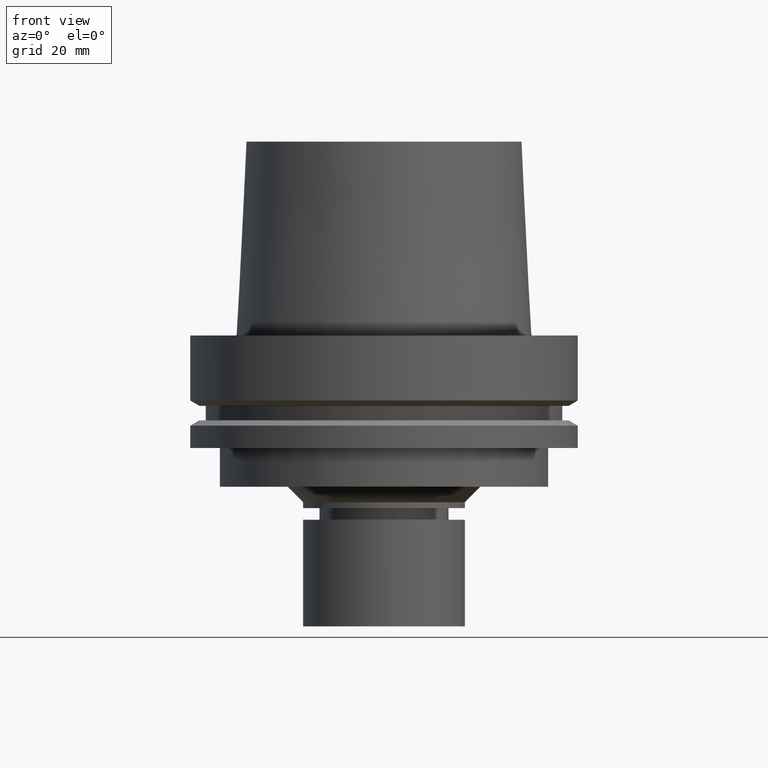
[diagram: clean part render]
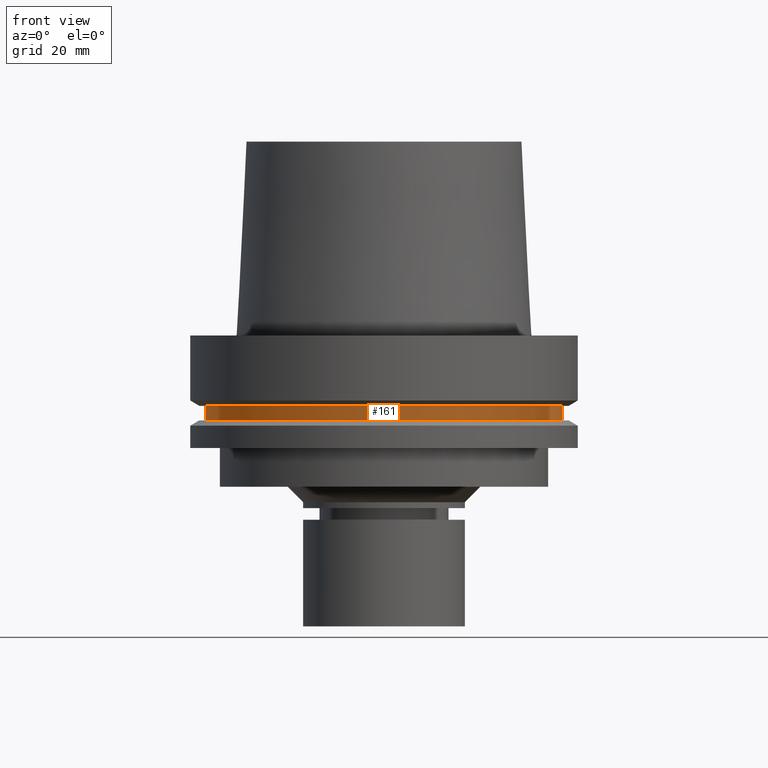
[diagram: same view with one face highlighted and labeled with its STEP entity id]
A machine part, front view. The second image highlights one B-rep face of the part: STEP entity #161.
In plain terms, the highlighted cylindrical surface (bore or boss wall) has radius 46 mm, axis along (0, 0, -1).
Its self-contained STEP definition (entity closure, byte-faithful):
#153=EDGE_CURVE('Unnamed[1]',#331,#331,#332,.T.);
#161=ADVANCED_FACE('Unnamed[1]',(#343,#344),#345,.T.);
#177=EDGE_CURVE('Unnamed[1]',#369,#369,#370,.T.);
#331=VERTEX_POINT('',#559);
#332=CIRCLE('',#560,46.0);
#343=FACE_BOUND('',#574,.T.);
#344=FACE_BOUND('',#575,.T.);
#345=CYLINDRICAL_SURFACE('',#576,46.0);
#369=VERTEX_POINT('',#607);
#370=CIRCLE('',#608,46.0);
#559=CARTESIAN_POINT('',(1.10983616172729E-015,46.0,-18.125));
#560=AXIS2_PLACEMENT_3D('',#775,#776,#777);
#574=EDGE_LOOP('',(#788));
#575=EDGE_LOOP('',(#789));
#576=AXIS2_PLACEMENT_3D('',#790,#791,#792);
#607=CARTESIAN_POINT('',(1.33945743656742E-015,46.0,-21.875));
#608=AXIS2_PLACEMENT_3D('',#817,#818,#819);
#775=CARTESIAN_POINT('',(1.10983616172729E-015,2.21967232345458E-015,-18.125));
#776=DIRECTION('',(6.12323399573677E-017,1.22464679914735E-016,-1.0));
#777=DIRECTION('',(-1.23259516440783E-032,1.0,1.22464679914735E-016));
#788=ORIENTED_EDGE('',*,*,#177,.F.);
#789=ORIENTED_EDGE('',*,*,#153,.T.);
#790=CARTESIAN_POINT('',(1.22464679914735E-015,2.44929359829471E-015,-20.0));
#791=DIRECTION('',(6.12323399573677E-017,1.22464679914735E-016,-1.0));
#792=DIRECTION('',(-1.23259516440783E-032,1.0,1.22464679914735E-016));
#817=CARTESIAN_POINT('',(1.33945743656742E-015,2.67891487313484E-015,-21.875));
#818=DIRECTION('',(6.12323399573677E-017,1.22464679914735E-016,-1.0));
#819=DIRECTION('',(-1.23259516440783E-032,1.0,1.22464679914735E-016));